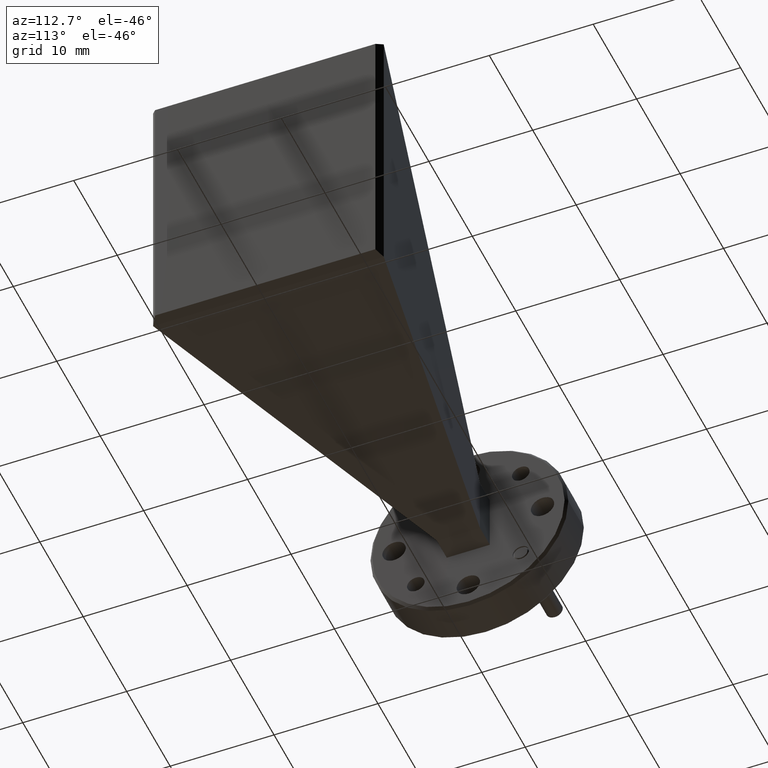
[diagram: clean part render]
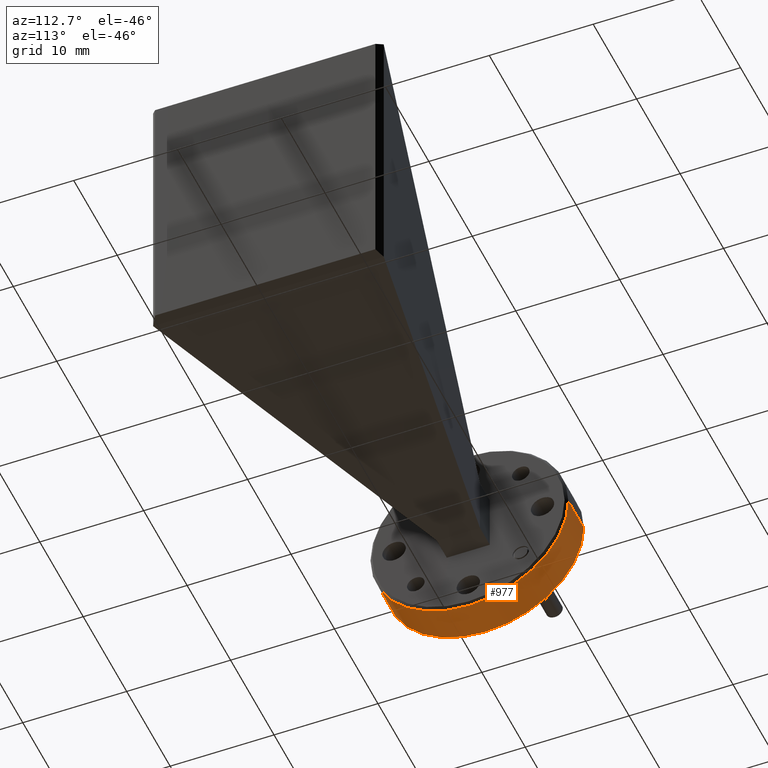
[diagram: same view with one face highlighted and labeled with its STEP entity id]
A machine part, auxiliary view. The second image highlights one B-rep face of the part: STEP entity #977.
In plain terms, the highlighted cylindrical surface (partial cylindrical patch) has radius 9.525 mm, axis along (1, 0, -0).
Its self-contained STEP definition (entity closure, byte-faithful):
#65 = CYLINDRICAL_SURFACE ( 'NONE', #1146, 0.3749999999999999445 ) ;
#70 = EDGE_CURVE ( 'NONE', #1956, #2033, #1744, .T. ) ;
#98 = CARTESIAN_POINT ( 'NONE',  ( -5.510880454576205345, 0.03069338720415550753, 2.109983861534752148 ) ) ;
#157 = LINE ( 'NONE', #1163, #1055 ) ;
#171 = EDGE_CURVE ( 'NONE', #1610, #2605, #157, .T. ) ;
#287 = CARTESIAN_POINT ( 'NONE',  ( -5.370880454576204777, 0.4056933872041557643, 1.734983861534752814 ) ) ;
#306 = CARTESIAN_POINT ( 'NONE',  ( -5.370880454576204777, 0.7806933872041555977, 2.109983861534752148 ) ) ;
#316 = DIRECTION ( 'NONE',  ( 1.000000000000000000, -0.000000000000000000, -0.000000000000000000 ) ) ;
#324 = FACE_OUTER_BOUND ( 'NONE', #2332, .T. ) ;
#557 = AXIS2_PLACEMENT_3D ( 'NONE', #1110, #1499, #1926 ) ;
#606 = CARTESIAN_POINT ( 'NONE',  ( -5.510880454576205345, 0.4056933872041555422, 2.109983861534752148 ) ) ;
#755 = CARTESIAN_POINT ( 'NONE',  ( -5.360880454576205878, 0.7806933872041555977, 2.109983861534752148 ) ) ;
#807 = CARTESIAN_POINT ( 'NONE',  ( -5.370880454576204777, 0.03069338720415564631, 2.109983861534752148 ) ) ;
#933 = CARTESIAN_POINT ( 'NONE',  ( -5.370880454576204777, 0.4056933872041556532, 2.109983861534752148 ) ) ;
#977 = ADVANCED_FACE ( 'NONE', ( #324 ), #65, .T. ) ;
#993 = EDGE_CURVE ( 'NONE', #1009, #2605, #1872, .T. ) ;
#997 = ORIENTED_EDGE ( 'NONE', *, *, #2451, .T. ) ;
#1009 = VERTEX_POINT ( 'NONE', #287 ) ;
#1055 = VECTOR ( 'NONE', #1574, 39.37007874015748143 ) ;
#1110 = CARTESIAN_POINT ( 'NONE',  ( -5.370880454576204777, 0.4056933872041556532, 2.109983861534752148 ) ) ;
#1146 = AXIS2_PLACEMENT_3D ( 'NONE', #1346, #2107, #1940 ) ;
#1163 = CARTESIAN_POINT ( 'NONE',  ( -5.360880454576205878, 0.03069338720415564631, 2.109983861534752148 ) ) ;
#1286 = CIRCLE ( 'NONE', #1378, 0.3750000000000002220 ) ;
#1311 = VECTOR ( 'NONE', #1352, 39.37007874015748143 ) ;
#1346 = CARTESIAN_POINT ( 'NONE',  ( -5.360880454576205878, 0.4056933872041556532, 2.109983861534752148 ) ) ;
#1352 = DIRECTION ( 'NONE',  ( 1.000000000000000000, 8.537024980200824776E-16, -0.000000000000000000 ) ) ;
#1373 = EDGE_CURVE ( 'NONE', #2001, #1956, #1708, .T. ) ;
#1378 = AXIS2_PLACEMENT_3D ( 'NONE', #606, #2254, #2420 ) ;
#1406 = ORIENTED_EDGE ( 'NONE', *, *, #171, .F. ) ;
#1445 = ORIENTED_EDGE ( 'NONE', *, *, #1473, .T. ) ;
#1473 = EDGE_CURVE ( 'NONE', #1610, #2001, #1286, .T. ) ;
#1499 = DIRECTION ( 'NONE',  ( -1.000000000000000000, 0.000000000000000000, 0.000000000000000000 ) ) ;
#1505 = CIRCLE ( 'NONE', #2232, 0.3749999999999999445 ) ;
#1574 = DIRECTION ( 'NONE',  ( 1.000000000000000000, 8.537024980200824776E-16, -0.000000000000000000 ) ) ;
#1610 = VERTEX_POINT ( 'NONE', #98 ) ;
#1708 = CIRCLE ( 'NONE', #2396, 0.3750000000000002220 ) ;
#1719 = DIRECTION ( 'NONE',  ( -1.000000000000000000, 0.000000000000000000, 0.000000000000000000 ) ) ;
#1744 = LINE ( 'NONE', #755, #1311 ) ;
#1824 = CARTESIAN_POINT ( 'NONE',  ( -5.510880454576205345, 0.7806933872041555977, 2.109983861534752148 ) ) ;
#1872 = CIRCLE ( 'NONE', #557, 0.3749999999999999445 ) ;
#1926 = DIRECTION ( 'NONE',  ( 0.000000000000000000, 0.000000000000000000, -1.000000000000000000 ) ) ;
#1940 = DIRECTION ( 'NONE',  ( 0.000000000000000000, 1.000000000000000000, 0.000000000000000000 ) ) ;
#1947 = DIRECTION ( 'NONE',  ( 0.000000000000000000, 0.000000000000000000, 1.000000000000000000 ) ) ;
#1956 = VERTEX_POINT ( 'NONE', #1824 ) ;
#2001 = VERTEX_POINT ( 'NONE', #2116 ) ;
#2033 = VERTEX_POINT ( 'NONE', #306 ) ;
#2044 = ORIENTED_EDGE ( 'NONE', *, *, #1373, .T. ) ;
#2107 = DIRECTION ( 'NONE',  ( 1.000000000000000000, 8.537024980200825762E-16, -0.000000000000000000 ) ) ;
#2116 = CARTESIAN_POINT ( 'NONE',  ( -5.510880454576205345, 0.4056933872041555422, 1.734983861534752148 ) ) ;
#2232 = AXIS2_PLACEMENT_3D ( 'NONE', #933, #1719, #2545 ) ;
#2254 = DIRECTION ( 'NONE',  ( 1.000000000000000000, -0.000000000000000000, -0.000000000000000000 ) ) ;
#2308 = ORIENTED_EDGE ( 'NONE', *, *, #70, .T. ) ;
#2332 = EDGE_LOOP ( 'NONE', ( #1406, #1445, #2044, #2308, #997, #2549 ) ) ;
#2396 = AXIS2_PLACEMENT_3D ( 'NONE', #2627, #316, #1947 ) ;
#2420 = DIRECTION ( 'NONE',  ( 0.000000000000000000, 0.000000000000000000, 1.000000000000000000 ) ) ;
#2451 = EDGE_CURVE ( 'NONE', #2033, #1009, #1505, .T. ) ;
#2545 = DIRECTION ( 'NONE',  ( 0.000000000000000000, -9.106159978880879367E-16, -1.000000000000000000 ) ) ;
#2549 = ORIENTED_EDGE ( 'NONE', *, *, #993, .T. ) ;
#2605 = VERTEX_POINT ( 'NONE', #807 ) ;
#2627 = CARTESIAN_POINT ( 'NONE',  ( -5.510880454576205345, 0.4056933872041555422, 2.109983861534752148 ) ) ;